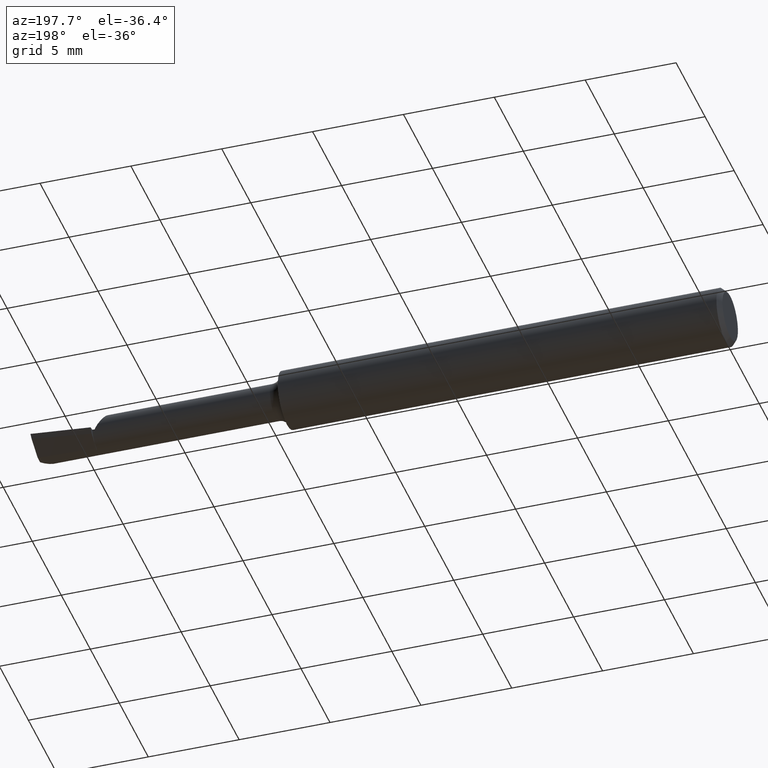
[diagram: clean part render]
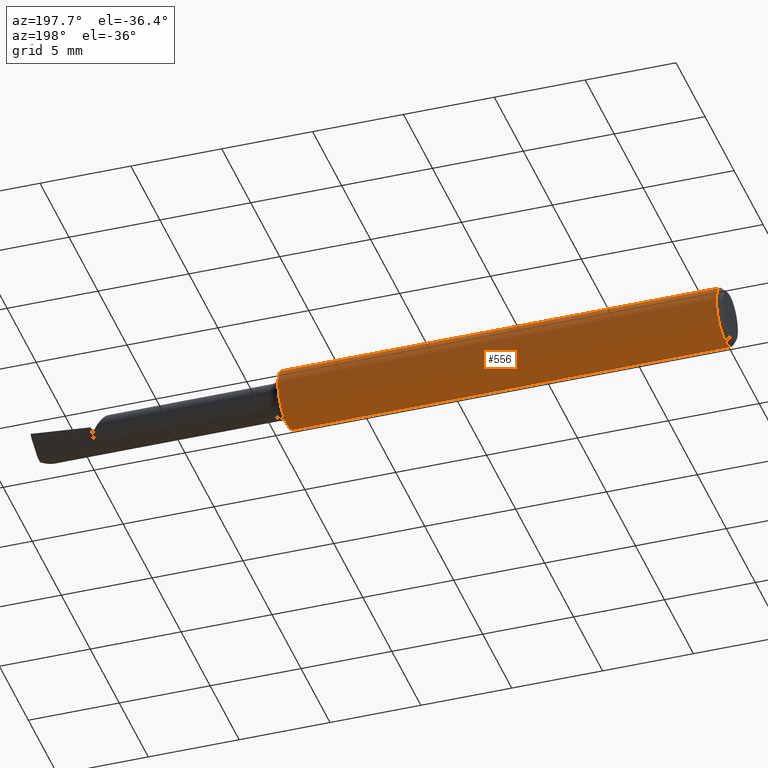
[diagram: same view with one face highlighted and labeled with its STEP entity id]
A machine part, auxiliary view. The second image highlights one B-rep face of the part: STEP entity #556.
In plain terms, the highlighted cylindrical surface (edge-blend (fillet) strip) has radius 1.5837 mm, axis along (-1, -0, -0).
Its self-contained STEP definition (entity closure, byte-faithful):
#3 = DIRECTION ( 'NONE',  ( 0.000000000000000000, 0.000000000000000000, 1.000000000000000000 ) ) ;
#8 = EDGE_CURVE ( 'NONE', #192, #312, #804, .T. ) ;
#21 = CARTESIAN_POINT ( 'NONE',  ( 0.01000000000000000021, 0.03386738844375217911, 0.05234999999999997988 ) ) ;
#44 = ORIENTED_EDGE ( 'NONE', *, *, #176, .F. ) ;
#49 = CARTESIAN_POINT ( 'NONE',  ( 0.9600545094255498180, 0.000000000000000000, 0.000000000000000000 ) ) ;
#55 = ORIENTED_EDGE ( 'NONE', *, *, #575, .F. ) ;
#73 = ORIENTED_EDGE ( 'NONE', *, *, #719, .F. ) ;
#98 = CARTESIAN_POINT ( 'NONE',  ( 0.9600545094255498180, 0.03386738844375217911, 0.05234999999999997988 ) ) ;
#104 = VERTEX_POINT ( 'NONE', #694 ) ;
#108 = CARTESIAN_POINT ( 'NONE',  ( 0.000000000000000000, 0.000000000000000000, 0.000000000000000000 ) ) ;
#130 = VECTOR ( 'NONE', #577, 39.37007874015748143 ) ;
#158 = AXIS2_PLACEMENT_3D ( 'NONE', #108, #243, #538 ) ;
#176 = EDGE_CURVE ( 'NONE', #463, #104, #618, .T. ) ;
#178 = CARTESIAN_POINT ( 'NONE',  ( 0.01000000000000000021, 0.000000000000000000, -0.06235000000000000264 ) ) ;
#181 = AXIS2_PLACEMENT_3D ( 'NONE', #613, #185, #3 ) ;
#185 = DIRECTION ( 'NONE',  ( -1.000000000000000000, -0.000000000000000000, -0.000000000000000000 ) ) ;
#190 = DIRECTION ( 'NONE',  ( 1.000000000000000000, 0.000000000000000000, 0.000000000000000000 ) ) ;
#192 = VERTEX_POINT ( 'NONE', #532 ) ;
#229 = DIRECTION ( 'NONE',  ( 1.000000000000000000, 0.000000000000000000, 0.000000000000000000 ) ) ;
#236 = EDGE_CURVE ( 'NONE', #104, #245, #328, .T. ) ;
#239 = ORIENTED_EDGE ( 'NONE', *, *, #792, .F. ) ;
#243 = DIRECTION ( 'NONE',  ( -1.000000000000000000, -0.000000000000000000, -0.000000000000000000 ) ) ;
#245 = VERTEX_POINT ( 'NONE', #323 ) ;
#259 = ORIENTED_EDGE ( 'NONE', *, *, #236, .F. ) ;
#270 = VERTEX_POINT ( 'NONE', #21 ) ;
#312 = VERTEX_POINT ( 'NONE', #98 ) ;
#323 = CARTESIAN_POINT ( 'NONE',  ( 0.9600545094255498180, -0.03386738844375219298, 0.05234999999999997988 ) ) ;
#328 = LINE ( 'NONE', #624, #336 ) ;
#336 = VECTOR ( 'NONE', #190, 39.37007874015748143 ) ;
#382 = CARTESIAN_POINT ( 'NONE',  ( 0.000000000000000000, 0.03386738844375217911, 0.05234999999999997988 ) ) ;
#386 = LINE ( 'NONE', #382, #130 ) ;
#421 = DIRECTION ( 'NONE',  ( 0.000000000000000000, 0.000000000000000000, -1.000000000000000000 ) ) ;
#433 = ORIENTED_EDGE ( 'NONE', *, *, #8, .F. ) ;
#459 = DIRECTION ( 'NONE',  ( 0.000000000000000000, 0.000000000000000000, -1.000000000000000000 ) ) ;
#463 = VERTEX_POINT ( 'NONE', #178 ) ;
#474 = CIRCLE ( 'NONE', #686, 0.06235000000000000264 ) ;
#509 = CARTESIAN_POINT ( 'NONE',  ( 0.9600545094255498180, 0.000000000000000000, 0.000000000000000000 ) ) ;
#532 = CARTESIAN_POINT ( 'NONE',  ( 0.9600545094255498180, 7.635672792683737427E-18, -0.06234999999999993325 ) ) ;
#537 = CIRCLE ( 'NONE', #602, 0.06234999999999997489 ) ;
#538 = DIRECTION ( 'NONE',  ( 0.000000000000000000, 0.000000000000000000, 1.000000000000000000 ) ) ;
#556 = ADVANCED_FACE ( 'NONE', ( #603 ), #799, .T. ) ;
#562 = EDGE_LOOP ( 'NONE', ( #239, #433, #55, #259, #44, #73 ) ) ;
#566 = AXIS2_PLACEMENT_3D ( 'NONE', #509, #775, #459 ) ;
#575 = EDGE_CURVE ( 'NONE', #245, #192, #537, .T. ) ;
#577 = DIRECTION ( 'NONE',  ( -1.000000000000000000, -0.000000000000000000, -0.000000000000000000 ) ) ;
#602 = AXIS2_PLACEMENT_3D ( 'NONE', #49, #229, #421 ) ;
#603 = FACE_OUTER_BOUND ( 'NONE', #562, .T. ) ;
#613 = CARTESIAN_POINT ( 'NONE',  ( 0.01000000000000000021, 0.000000000000000000, 0.000000000000000000 ) ) ;
#618 = CIRCLE ( 'NONE', #181, 0.06235000000000000264 ) ;
#624 = CARTESIAN_POINT ( 'NONE',  ( 0.000000000000000000, -0.03386738844375219298, 0.05234999999999997988 ) ) ;
#627 = DIRECTION ( 'NONE',  ( 0.000000000000000000, 0.000000000000000000, 1.000000000000000000 ) ) ;
#678 = DIRECTION ( 'NONE',  ( -1.000000000000000000, -0.000000000000000000, -0.000000000000000000 ) ) ;
#686 = AXIS2_PLACEMENT_3D ( 'NONE', #750, #678, #627 ) ;
#694 = CARTESIAN_POINT ( 'NONE',  ( 0.01000000000000000021, -0.03386738844375219298, 0.05234999999999997988 ) ) ;
#719 = EDGE_CURVE ( 'NONE', #270, #463, #474, .T. ) ;
#750 = CARTESIAN_POINT ( 'NONE',  ( 0.01000000000000000021, 0.000000000000000000, 0.000000000000000000 ) ) ;
#775 = DIRECTION ( 'NONE',  ( 1.000000000000000000, 0.000000000000000000, 0.000000000000000000 ) ) ;
#792 = EDGE_CURVE ( 'NONE', #312, #270, #386, .T. ) ;
#799 = CYLINDRICAL_SURFACE ( 'NONE', #158, 0.06234999999999997489 ) ;
#804 = CIRCLE ( 'NONE', #566, 0.06234999999999997489 ) ;